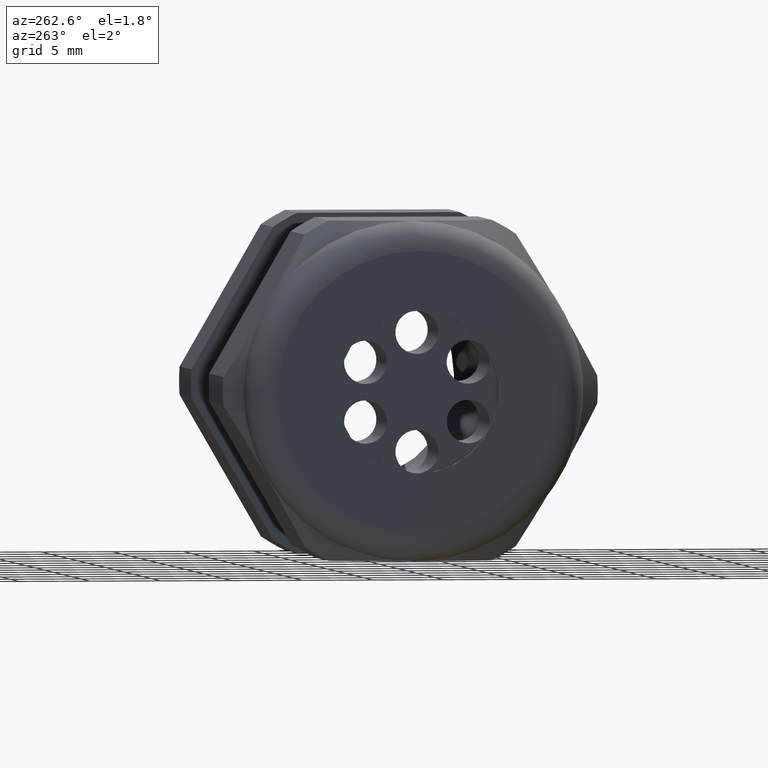
[diagram: clean part render]
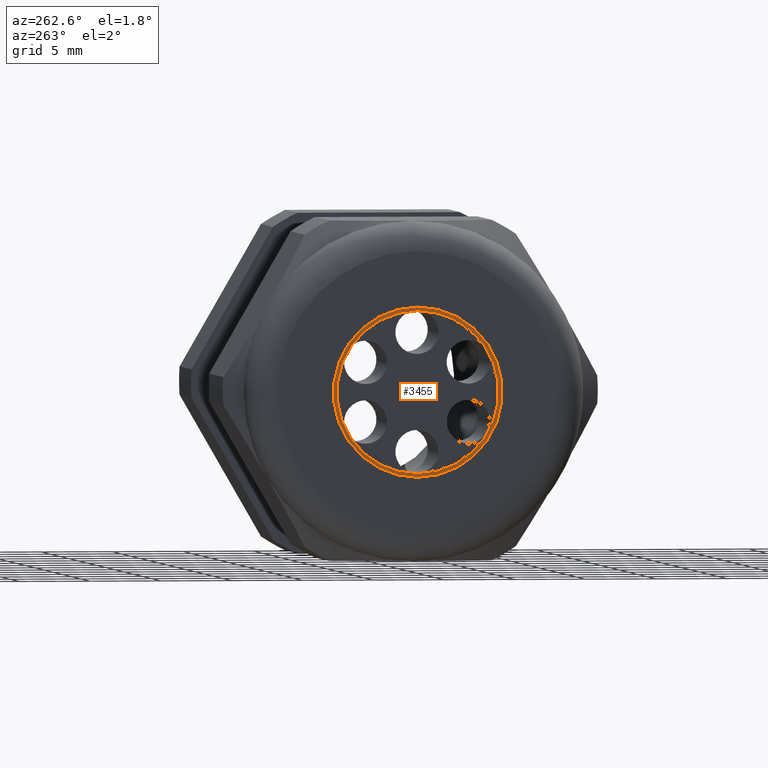
[diagram: same view with one face highlighted and labeled with its STEP entity id]
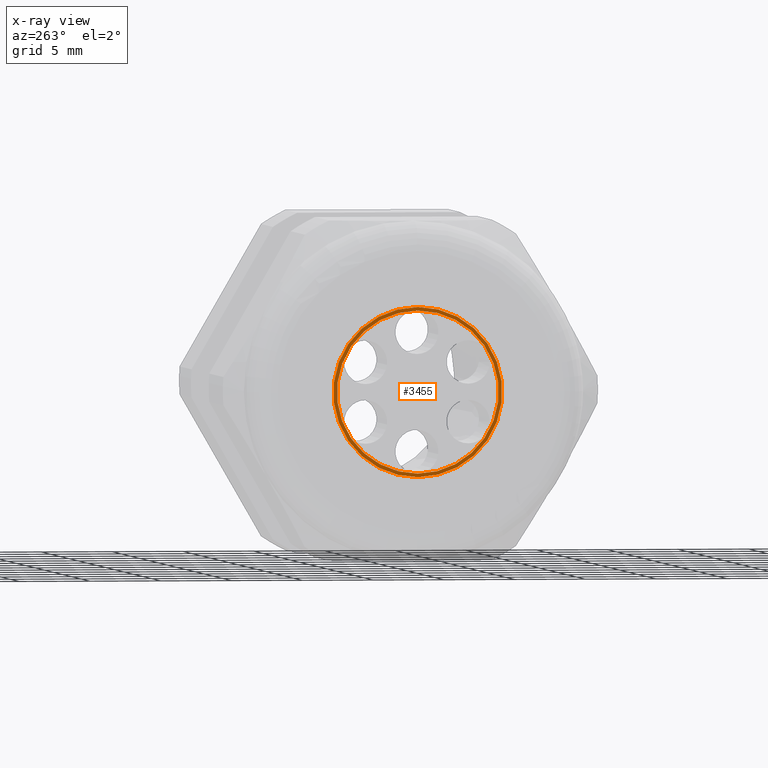
[diagram: x-ray of the same camera — body ghosted, the highlighted face saturated]
A machine part, auxiliary view. The second image highlights one B-rep face of the part: STEP entity #3455.
The next image is the same camera in x-ray: the body ghosted, the highlighted face saturated — about 0% of this face is hidden behind the body in this view.
In plain terms, the highlighted planar face has unit normal (-1, 0, 0).
Its self-contained STEP definition (entity closure, byte-faithful):
#45 = DIRECTION ( 'NONE',  ( 0.0000000000000000000, 0.0000000000000000000, 1.000000000000000000 ) ) ;
#46 = DIRECTION ( 'NONE',  ( -1.000000000000000000, 0.0000000000000000000, 0.0000000000000000000 ) ) ;
#47 = CARTESIAN_POINT ( 'NONE',  ( -1.409999999999999900, 0.0000000000000000000, 0.0000000000000000000 ) ) ;
#48 = AXIS2_PLACEMENT_3D ( 'NONE', #47, #46, #45 ) ;
#49 = CIRCLE ( 'NONE', #48, 0.2249999999999999800 ) ;
#55 = DIRECTION ( 'NONE',  ( 0.0000000000000000000, 0.0000000000000000000, 1.000000000000000000 ) ) ;
#56 = DIRECTION ( 'NONE',  ( -1.000000000000000000, 0.0000000000000000000, 0.0000000000000000000 ) ) ;
#57 = CARTESIAN_POINT ( 'NONE',  ( -1.409999999999999900, 0.0000000000000000000, 0.0000000000000000000 ) ) ;
#58 = AXIS2_PLACEMENT_3D ( 'NONE', #57, #56, #55 ) ;
#59 = PLANE ( 'NONE',  #58 ) ;
#60 = FACE_OUTER_BOUND ( 'NONE', #3451, .T. ) ;
#61 = FACE_BOUND ( 'NONE', #3431, .T. ) ;
#417 = DIRECTION ( 'NONE',  ( 0.0000000000000000000, 0.0000000000000000000, 1.000000000000000000 ) ) ;
#418 = DIRECTION ( 'NONE',  ( -1.000000000000000000, 0.0000000000000000000, 0.0000000000000000000 ) ) ;
#419 = AXIS2_PLACEMENT_3D ( 'NONE', #426, #418, #417 ) ;
#420 = CIRCLE ( 'NONE', #419, 0.2249999999999999800 ) ;
#426 = CARTESIAN_POINT ( 'NONE',  ( -1.409999999999999900, 0.0000000000000000000, 0.0000000000000000000 ) ) ;
#432 = CARTESIAN_POINT ( 'NONE',  ( -1.409999999999999900, 0.0000000000000000000, 0.2349999999999999900 ) ) ;
#433 = DIRECTION ( 'NONE',  ( 0.0000000000000000000, 0.0000000000000000000, 1.000000000000000000 ) ) ;
#434 = DIRECTION ( 'NONE',  ( -1.000000000000000000, 0.0000000000000000000, 0.0000000000000000000 ) ) ;
#435 = CARTESIAN_POINT ( 'NONE',  ( -1.409999999999999900, 0.0000000000000000000, 0.0000000000000000000 ) ) ;
#436 = AXIS2_PLACEMENT_3D ( 'NONE', #435, #434, #433 ) ;
#437 = CIRCLE ( 'NONE', #436, 0.2349999999999999900 ) ;
#438 = CARTESIAN_POINT ( 'NONE',  ( -1.409999999999999900, 2.877919977996279800E-017, -0.2349999999999999900 ) ) ;
#448 = CARTESIAN_POINT ( 'NONE',  ( -1.409999999999999900, 0.0000000000000000000, 0.0000000000000000000 ) ) ;
#449 = AXIS2_PLACEMENT_3D ( 'NONE', #448, #511, #510 ) ;
#450 = CIRCLE ( 'NONE', #449, 0.2349999999999999900 ) ;
#462 = CARTESIAN_POINT ( 'NONE',  ( -1.409999999999999900, 0.0000000000000000000, 0.2249999999999999800 ) ) ;
#463 = CARTESIAN_POINT ( 'NONE',  ( -1.409999999999999900, 2.755455298081544500E-017, -0.2249999999999999800 ) ) ;
#510 = DIRECTION ( 'NONE',  ( 0.0000000000000000000, 0.0000000000000000000, 1.000000000000000000 ) ) ;
#511 = DIRECTION ( 'NONE',  ( -1.000000000000000000, 0.0000000000000000000, 0.0000000000000000000 ) ) ;
#3431 = EDGE_LOOP ( 'NONE', ( #3467, #3460 ) ) ;
#3437 = ORIENTED_EDGE ( 'NONE', *, *, #3701, .T. ) ;
#3438 = ORIENTED_EDGE ( 'NONE', *, *, #3672, .T. ) ;
#3451 = EDGE_LOOP ( 'NONE', ( #3438, #3437 ) ) ;
#3455 = ADVANCED_FACE ( 'NONE', ( #61, #60 ), #59, .T. ) ;
#3460 = ORIENTED_EDGE ( 'NONE', *, *, #3681, .F. ) ;
#3463 = EDGE_CURVE ( 'NONE', #3693, #3692, #49, .T. ) ;
#3467 = ORIENTED_EDGE ( 'NONE', *, *, #3463, .F. ) ;
#3670 = VERTEX_POINT ( 'NONE', #438 ) ;
#3672 = EDGE_CURVE ( 'NONE', #3673, #3670, #437, .T. ) ;
#3673 = VERTEX_POINT ( 'NONE', #432 ) ;
#3681 = EDGE_CURVE ( 'NONE', #3692, #3693, #420, .T. ) ;
#3692 = VERTEX_POINT ( 'NONE', #463 ) ;
#3693 = VERTEX_POINT ( 'NONE', #462 ) ;
#3701 = EDGE_CURVE ( 'NONE', #3670, #3673, #450, .T. ) ;